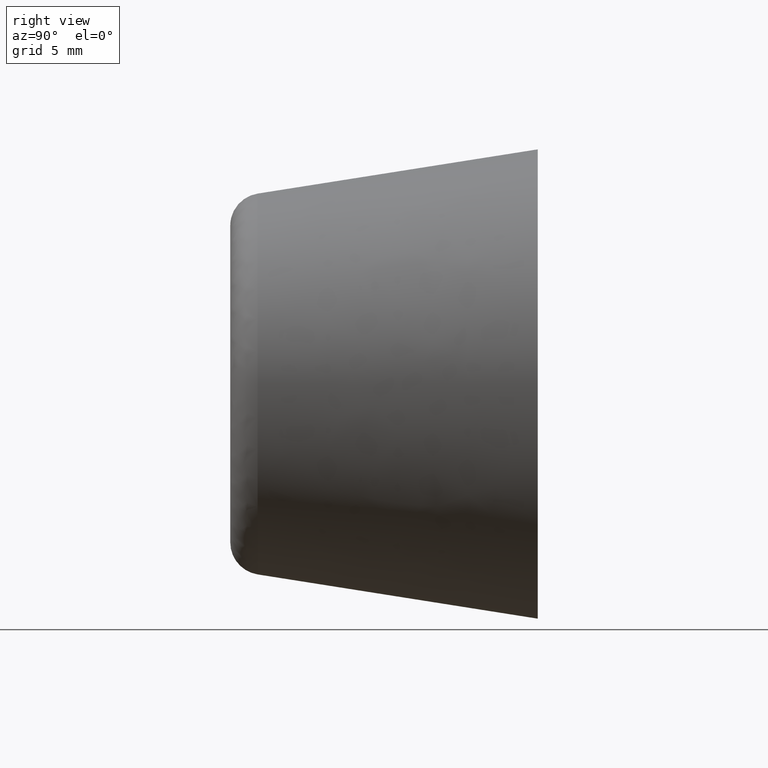
[diagram: clean part render]
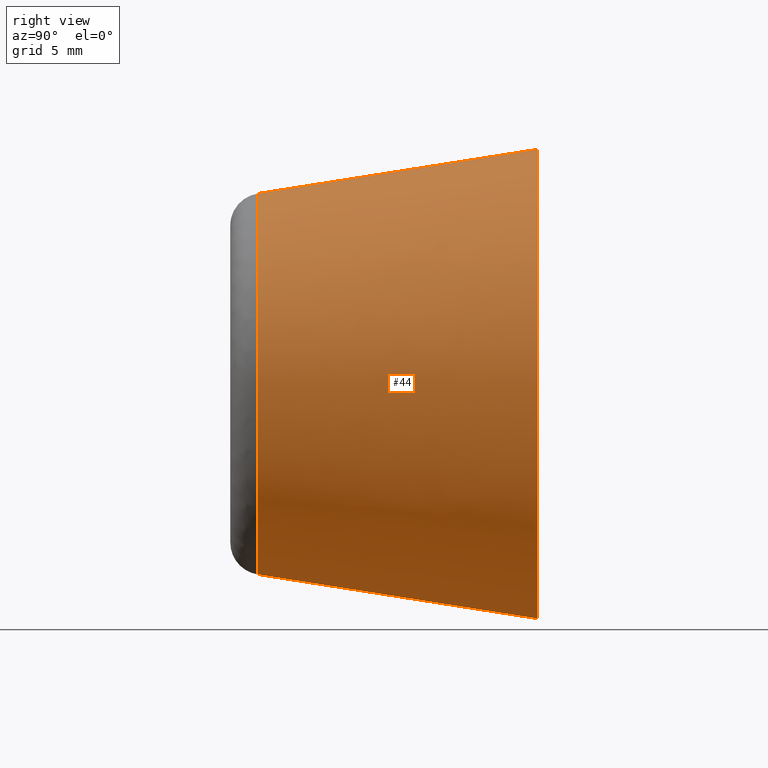
[diagram: same view with one face highlighted and labeled with its STEP entity id]
A machine part, right view. The second image highlights one B-rep face of the part: STEP entity #44.
In plain terms, the highlighted face is a freeform B-spline surface patch.
Its self-contained STEP definition (entity closure, byte-faithful):
#44=ADVANCED_FACE('',(#95),#94,.T.);
#94=( BOUNDED_SURFACE() B_SPLINE_SURFACE( 2,1,((#193,#194),(#195,#196),(#197,#198),(#199,#200),(#201,#202)), .UNSPECIFIED.,.F.,.F.,.F.) B_SPLINE_SURFACE_WITH_KNOTS((3,2,3),(2,2),(0.00000000000E+00,5.00000000000E-01,1.00000000000E+00),(0.00000000000E+00,1.00000000000E+00), .UNSPECIFIED. ) GEOMETRIC_REPRESENTATION_ITEM() RATIONAL_B_SPLINE_SURFACE(((1.00000000000E+00,1.00000000000E+00),(7.07106781187E-01,7.07106781187E-01),(1.00000000000E+00,1.00000000000E+00),(7.07106781187E-01,7.07106781187E-01),(1.00000000000E+00,1.00000000000E+00))) REPRESENTATION_ITEM('') SURFACE() );
#95=FACE_OUTER_BOUND('',#203,.T.);
#193=CARTESIAN_POINT('',(6.66637794928E-15,-1.73119251469E+01,1.17665381347E+01));
#194=CARTESIAN_POINT('',(8.21503140159E-15,0.00000000000E+00,1.45000000000E+01));
#195=CARTESIAN_POINT('',(1.17665381347E+01,-1.73119251469E+01,1.17665381347E+01));
#196=CARTESIAN_POINT('',(1.45000000000E+01,0.00000000000E+00,1.45000000000E+01));
#197=CARTESIAN_POINT('',(1.17665381347E+01,-1.73119251469E+01,-5.94588528609E-15));
#198=CARTESIAN_POINT('',(1.45000000000E+01,0.00000000000E+00,-7.32716247221E-15));
#199=CARTESIAN_POINT('',(1.17665381347E+01,-1.73119251469E+01,-1.17665381347E+01));
#200=CARTESIAN_POINT('',(1.45000000000E+01,0.00000000000E+00,-1.45000000000E+01));
#201=CARTESIAN_POINT('',(-5.22539262291E-15,-1.73119251469E+01,-1.17665381347E+01));
#202=CARTESIAN_POINT('',(-6.43929354283E-15,0.00000000000E+00,-1.45000000000E+01));
#203=EDGE_LOOP('',(#292,#293,#294,#295));
#292=ORIENTED_EDGE('',*,*,#335,.F.);
#293=ORIENTED_EDGE('',*,*,#332,.T.);
#294=ORIENTED_EDGE('',*,*,#321,.T.);
#295=ORIENTED_EDGE('',*,*,#334,.F.);
#321=EDGE_CURVE('',#343,#342,#350,.T.);
#332=EDGE_CURVE('',#426,#343,#427,.T.);
#334=EDGE_CURVE('',#433,#342,#440,.T.);
#335=EDGE_CURVE('',#426,#433,#446,.T.);
#342=VERTEX_POINT('',#488);
#343=VERTEX_POINT('',#489);
#350=CIRCLE('',#497,1.45000000000E+01);
#426=VERTEX_POINT('',#548);
#427=(BOUNDED_CURVE() B_SPLINE_CURVE(1,(#549,#550),.UNSPECIFIED.,.F.,.F.) B_SPLINE_CURVE_WITH_KNOTS((2,2),(0.00000000000E+00,1.00000000000E+00),.UNSPECIFIED.) CURVE() GEOMETRIC_REPRESENTATION_ITEM() RATIONAL_B_SPLINE_CURVE((1.00000000000E+00,1.00000000000E+00)) REPRESENTATION_ITEM('') );
#433=VERTEX_POINT('',#551);
#440=(BOUNDED_CURVE() B_SPLINE_CURVE(1,(#556,#557),.UNSPECIFIED.,.F.,.F.) B_SPLINE_CURVE_WITH_KNOTS((2,2),(0.00000000000E+00,1.00000000000E+00),.UNSPECIFIED.) CURVE() GEOMETRIC_REPRESENTATION_ITEM() RATIONAL_B_SPLINE_CURVE((7.50000000000E-01,7.50000000000E-01)) REPRESENTATION_ITEM('') );
#446=CIRCLE('',#561,1.17665381347E+01);
#488=CARTESIAN_POINT('',(5.92118946467E-16,0.00000000000E+00,1.45000000000E+01));
#489=CARTESIAN_POINT('',(0.00000000000E+00,0.00000000000E+00,-1.45000000000E+01));
#494=CARTESIAN_POINT('',(0.00000000000E+00,0.00000000000E+00,0.00000000000E+00));
#495=DIRECTION('',(0.00000000000E+00,-1.00000000000E+00,-0.00000000000E+00));
#496=DIRECTION('',(-1.22460635382E-16,0.00000000000E+00,-1.00000000000E+00));
#497=AXIS2_PLACEMENT_3D('',#494,#495,#496);
#548=CARTESIAN_POINT('',(0.00000000000E+00,-1.73119251469E+01,-1.17665381347E+01));
#549=CARTESIAN_POINT('',(-2.88187547245E-15,-1.73119251469E+01,-1.17665381347E+01));
#550=CARTESIAN_POINT('',(-3.55135842608E-15,0.00000000000E+00,-1.45000000000E+01));
#551=CARTESIAN_POINT('',(-5.92118946467E-16,-1.73119251469E+01,1.17665381347E+01));
#556=CARTESIAN_POINT('',(4.14483262527E-15,-1.73119251469E+01,1.17665381347E+01));
#557=CARTESIAN_POINT('',(3.55271367880E-15,0.00000000000E+00,1.45000000000E+01));
#558=CARTESIAN_POINT('',(0.00000000000E+00,-1.73119251469E+01,0.00000000000E+00));
#559=DIRECTION('',(0.00000000000E+00,-1.00000000000E+00,-0.00000000000E+00));
#560=DIRECTION('',(-1.22460635382E-16,0.00000000000E+00,-1.00000000000E+00));
#561=AXIS2_PLACEMENT_3D('',#558,#559,#560);